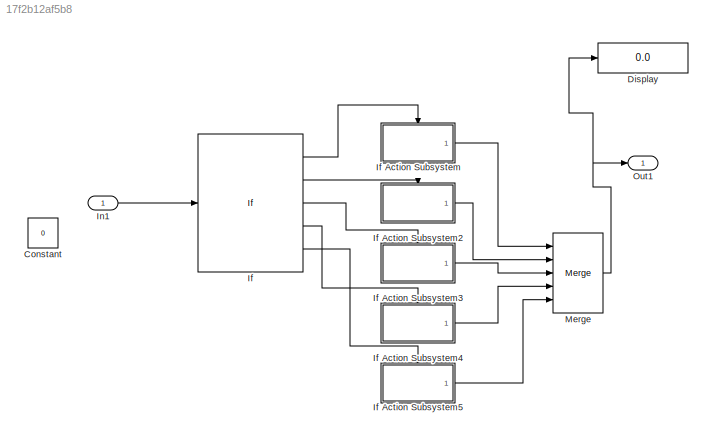
MODEL slx_17f2b12af5b8
KIND model
CONFIG AbsTol = auto
CONFIG EnableMultiTasking = off
CONFIG FixedStep = auto
CONFIG MaxStep = auto
CONFIG MinStep = auto
CONFIG RelTol = 1e-3
CONFIG SampleTimeConstraint = Unconstrained
CONFIG SolverName = FixedStepDiscrete
CONFIG StartTime = 0.0
CONFIG StopTime = 10
BLOCK [Constant] Constant
  Value = 0
BLOCK [Display] Display
  Decimation = 1
  Ports = [1]
BLOCK [If] If
  ElseIfExpressions = u1 >= 75, u1 >= 65, u1 >=50
  IfExpression = u1 >= 85
  Ports = [1, 5]
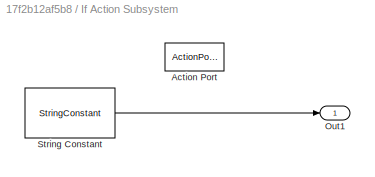
BLOCK [SubSystem] If Action Subsystem
  Ports = [0, 1, 0, 0, 0, 0, 0, 1]
  RequestExecContextInheritance = off
  TreatAsAtomicUnit = on
BLOCK [ActionPort] If Action Subsystem/Action Port
  ActionPortLabel = if(u1 >= 85)
BLOCK [Outport] If Action Subsystem/Out1
BLOCK [StringConstant] If Action Subsystem/String Constant
  String = "Excellent"
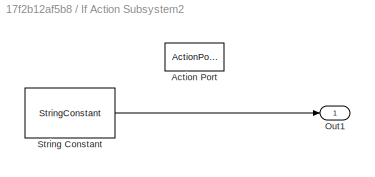
BLOCK [SubSystem] If Action Subsystem2
  Ports = [0, 1, 0, 0, 0, 0, 0, 1]
  RequestExecContextInheritance = off
  TreatAsAtomicUnit = on
BLOCK [ActionPort] If Action Subsystem2/Action Port
  ActionPortLabel = elseif(u1 >= 75)
BLOCK [Outport] If Action Subsystem2/Out1
BLOCK [StringConstant] If Action Subsystem2/String Constant
  String = "Very Good"
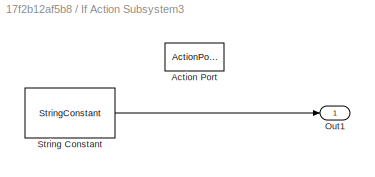
BLOCK [SubSystem] If Action Subsystem3
  Ports = [0, 1, 0, 0, 0, 0, 0, 1]
  RequestExecContextInheritance = off
  TreatAsAtomicUnit = on
BLOCK [ActionPort] If Action Subsystem3/Action Port
  ActionPortLabel = elseif( u1 >= 65)
BLOCK [Outport] If Action Subsystem3/Out1
BLOCK [StringConstant] If Action Subsystem3/String Constant
  String = "Good"
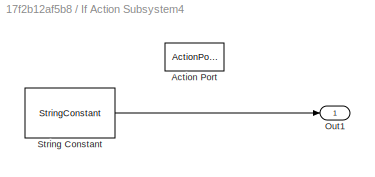
BLOCK [SubSystem] If Action Subsystem4
  Ports = [0, 1, 0, 0, 0, 0, 0, 1]
  RequestExecContextInheritance = off
  TreatAsAtomicUnit = on
BLOCK [ActionPort] If Action Subsystem4/Action Port
  ActionPortLabel = elseif( u1 >=50)
BLOCK [Outport] If Action Subsystem4/Out1
BLOCK [StringConstant] If Action Subsystem4/String Constant
  String = "Pass"
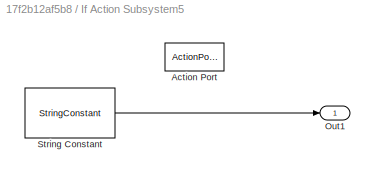
BLOCK [SubSystem] If Action Subsystem5
  Ports = [0, 1, 0, 0, 0, 0, 0, 1]
  RequestExecContextInheritance = off
  TreatAsAtomicUnit = on
BLOCK [ActionPort] If Action Subsystem5/Action Port
  ActionPortLabel = else
BLOCK [Outport] If Action Subsystem5/Out1
BLOCK [StringConstant] If Action Subsystem5/String Constant
  String = "Fail"
BLOCK [Inport] In1
  OutDataTypeStr = uint8
BLOCK [Merge] Merge
  Inputs = 5
  Ports = [5, 1]
BLOCK [Outport] Out1
LINE If Action Subsystem/String Constant:1 -> If Action Subsystem/Out1:1
LINE If Action Subsystem2/String Constant:1 -> If Action Subsystem2/Out1:1
LINE If Action Subsystem2:1 -> Merge:2
LINE If Action Subsystem3/String Constant:1 -> If Action Subsystem3/Out1:1
LINE If Action Subsystem3:1 -> Merge:3
LINE If Action Subsystem4/String Constant:1 -> If Action Subsystem4/Out1:1
LINE If Action Subsystem4:1 -> Merge:4
LINE If Action Subsystem5/String Constant:1 -> If Action Subsystem5/Out1:1
LINE If Action Subsystem5:1 -> Merge:5
LINE If Action Subsystem:1 -> Merge:1
LINE If:1 -> If Action Subsystem:ifaction
LINE If:2 -> If Action Subsystem2:ifaction
LINE If:3 -> If Action Subsystem3:ifaction
LINE If:4 -> If Action Subsystem4:ifaction
LINE If:5 -> If Action Subsystem5:ifaction
LINE In1:1 -> If:1
NET Merge:1 -> Display:1, Out1:1
note: NET lines group one-source signal fan-out (src -> all destinations, sorted); 1:1 wires keep LINE
